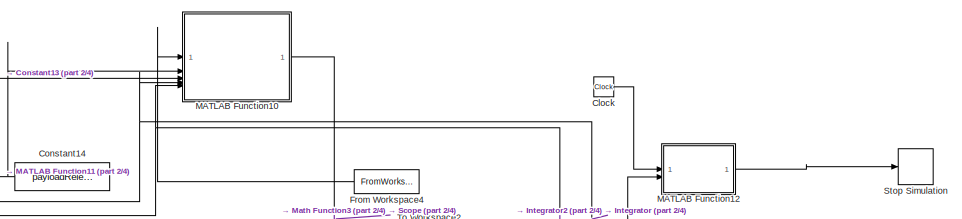
[diagram: root canvas - part 1/4, top center region]
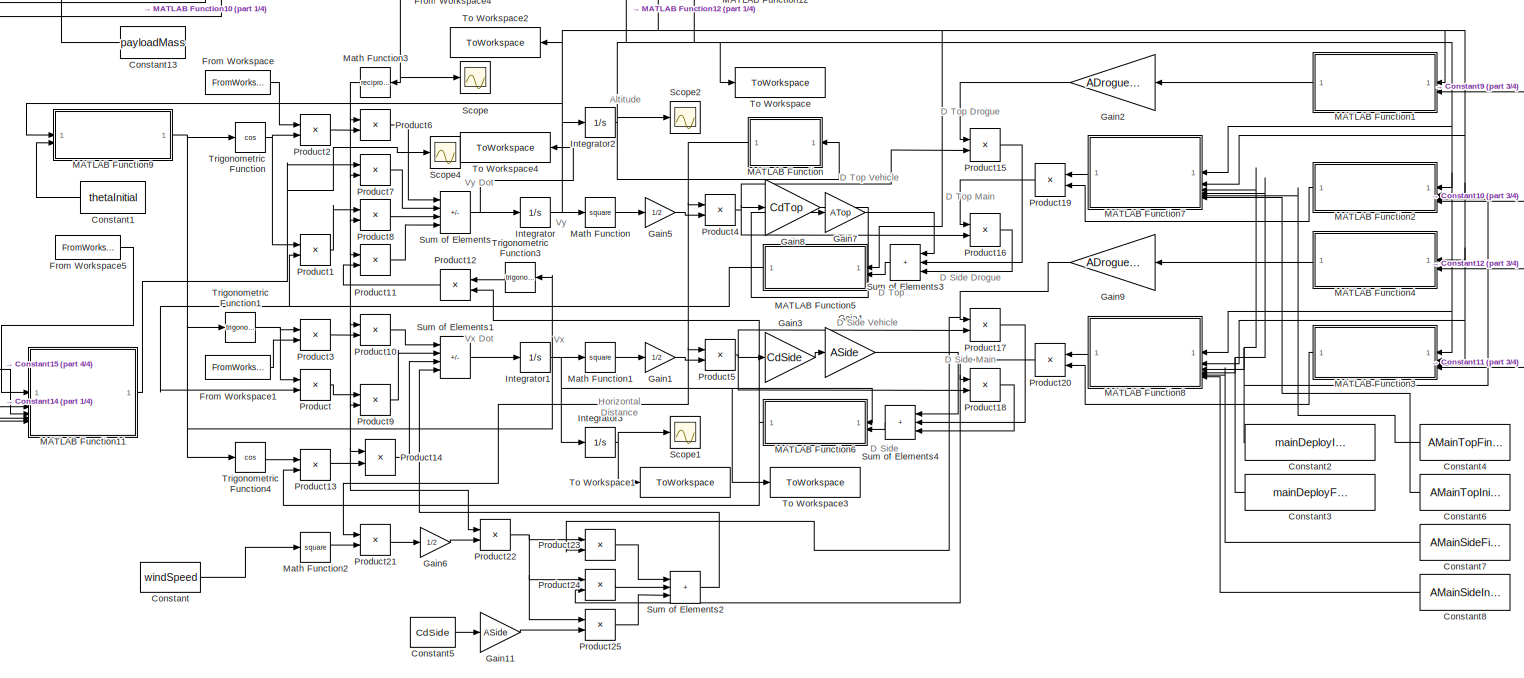
[diagram: root canvas - part 2/4, most of the canvas]
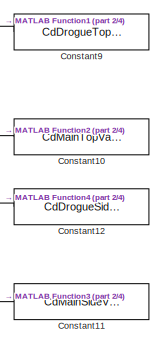
[diagram: root canvas - part 3/4, middle right region]
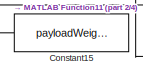
[diagram: root canvas - part 4/4, bottom left region]
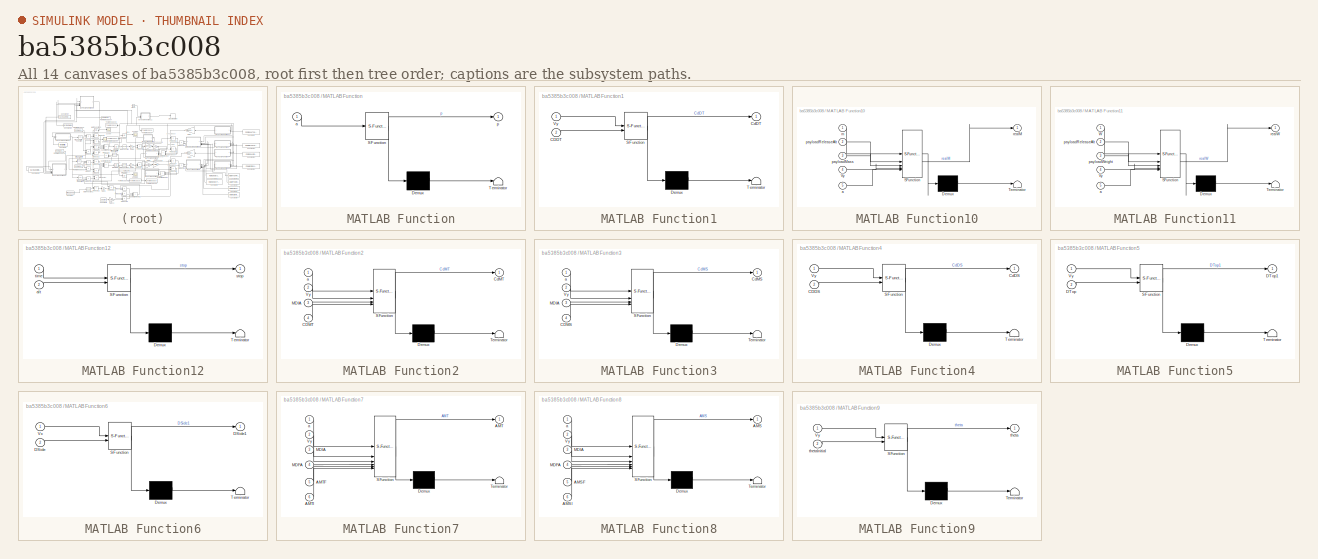
[diagram: thumbnail index - all 14 canvases of the model, root first then tree order]
MODEL slx_ba5385b3c008
KIND model
CONFIG AbsTol = auto
CONFIG EnableMultiTasking = off
CONFIG FixedStep = auto
CONFIG MaxStep = auto
CONFIG MinStep = auto
CONFIG RelTol = 1e-3
CONFIG SampleTimeConstraint = Unconstrained
CONFIG SolverName = ode15s
CONFIG StartTime = 0.0
CONFIG StopTime = 200
BLOCK [Clock] Clock
BLOCK [Constant] Constant
  Value = windSpeed
BLOCK [Constant] Constant1
  Value = thetaInitial
BLOCK [Constant] Constant10
  Value = CdMainTopValue
BLOCK [Constant] Constant11
  Value = CdMainSideValue
BLOCK [Constant] Constant12
  Value = CdDrogueSideValue
BLOCK [Constant] Constant13
  Value = payloadMass
BLOCK [Constant] Constant14
  Value = payloadReleaseAlt
BLOCK [Constant] Constant15
  Value = payloadWeight
BLOCK [Constant] Constant2
  Value = mainDeployInitialAltitude
BLOCK [Constant] Constant3
  Value = mainDeployFullyAltitude
BLOCK [Constant] Constant4
  Value = AMainTopFinal
BLOCK [Constant] Constant5
  Value = CdSide
BLOCK [Constant] Constant6
  Value = AMainTopInitial
BLOCK [Constant] Constant7
  Value = AMainSideFinal
BLOCK [Constant] Constant8
  Value = AMainSideInitial
BLOCK [Constant] Constant9
  Value = CdDrogueTopValue
BLOCK [FromWorkspace] From Workspace
  OutputAfterFinalValue = Holding final value
  VariableName = T
BLOCK [FromWorkspace] From Workspace1
  OutputAfterFinalValue = Holding final value
  VariableName = T
BLOCK [FromWorkspace] From Workspace4
  OutputAfterFinalValue = Holding final value
  VariableName = m
BLOCK [FromWorkspace] From Workspace5
  OutputAfterFinalValue = Holding final value
  VariableName = W
BLOCK [Gain] Gain1
  Gain = 1/2
BLOCK [Gain] Gain11
  Gain = ASide
BLOCK [Gain] Gain2
  Gain = ADrogueTop
BLOCK [Gain] Gain3
  Gain = CdSide
BLOCK [Gain] Gain4
  Gain = ASide
BLOCK [Gain] Gain5
  Gain = 1/2
BLOCK [Gain] Gain6
  Gain = 1/2
BLOCK [Gain] Gain7
  Gain = ATop
BLOCK [Gain] Gain8
  Gain = CdTop
BLOCK [Gain] Gain9
  Gain = ADrogueSide
BLOCK [Integrator] Integrator
BLOCK [Integrator] Integrator1
BLOCK [Integrator] Integrator2
BLOCK [Integrator] Integrator3
BLOCK [SubSystem] MATLAB Function
  ErrorFcn = Stateflow.Translate.translate
  PermitHierarchicalResolution = ExplicitOnly
  SFBlockType = MATLAB Function
  TreatAsAtomicUnit = on
BLOCK [Demux] MATLAB Function/ Demux 
  Outputs = 1
BLOCK [S-Function] MATLAB Function/ SFunction 
  EnableBusSupport = on
  FunctionName = sf_sfun
  PortCounts = [1 2]
  SFcnIsStateOwnerBlock = off
  SFunctionDeploymentMode = off
  Tag = Stateflow S-Function 2
BLOCK [Terminator] MATLAB Function/ Terminator 
BLOCK [Inport] MATLAB Function/a
BLOCK [Outport] MATLAB Function/p
BLOCK [SubSystem] MATLAB Function1
  ErrorFcn = Stateflow.Translate.translate
  PermitHierarchicalResolution = ExplicitOnly
  SFBlockType = MATLAB Function
  TreatAsAtomicUnit = on
BLOCK [Demux] MATLAB Function1/ Demux 
  Outputs = 1
BLOCK [S-Function] MATLAB Function1/ SFunction 
  EnableBusSupport = on
  FunctionName = sf_sfun
  PortCounts = [2 2]
  SFcnIsStateOwnerBlock = off
  SFunctionDeploymentMode = off
  Tag = Stateflow S-Function 1
BLOCK [Terminator] MATLAB Function1/ Terminator 
BLOCK [Inport] MATLAB Function1/CDDT
  Port = 2
BLOCK [Outport] MATLAB Function1/CdDT
BLOCK [Inport] MATLAB Function1/Vy
BLOCK [SubSystem] MATLAB Function10
  ErrorFcn = Stateflow.Translate.translate
  PermitHierarchicalResolution = ExplicitOnly
  SFBlockType = MATLAB Function
  TreatAsAtomicUnit = on
BLOCK [Demux] MATLAB Function10/ Demux 
  Outputs = 1
BLOCK [S-Function] MATLAB Function10/ SFunction 
  EnableBusSupport = on
  FunctionName = sf_sfun
  PortCounts = [5 2]
  SFcnIsStateOwnerBlock = off
  SFunctionDeploymentMode = off
  Tag = Stateflow S-Function 11
BLOCK [Terminator] MATLAB Function10/ Terminator 
BLOCK [Inport] MATLAB Function10/Vy
  Port = 4
BLOCK [Inport] MATLAB Function10/a
  Port = 5
BLOCK [Inport] MATLAB Function10/m
BLOCK [Inport] MATLAB Function10/payloadMass
  Port = 3
BLOCK [Inport] MATLAB Function10/payloadReleaseAlt
  Port = 2
BLOCK [Outport] MATLAB Function10/realM
BLOCK [SubSystem] MATLAB Function11
  ErrorFcn = Stateflow.Translate.translate
  PermitHierarchicalResolution = ExplicitOnly
  SFBlockType = MATLAB Function
  TreatAsAtomicUnit = on
BLOCK [Demux] MATLAB Function11/ Demux 
  Outputs = 1
BLOCK [S-Function] MATLAB Function11/ SFunction 
  EnableBusSupport = on
  FunctionName = sf_sfun
  PortCounts = [5 2]
  SFcnIsStateOwnerBlock = off
  SFunctionDeploymentMode = off
  Tag = Stateflow S-Function 12
BLOCK [Terminator] MATLAB Function11/ Terminator 
BLOCK [Inport] MATLAB Function11/Vy
  Port = 4
BLOCK [Inport] MATLAB Function11/W
BLOCK [Inport] MATLAB Function11/a
  Port = 5
BLOCK [Inport] MATLAB Function11/payloadReleaseAlt
  Port = 2
BLOCK [Inport] MATLAB Function11/payloadWeight
  Port = 3
BLOCK [Outport] MATLAB Function11/realW
BLOCK [SubSystem] MATLAB Function12
  ErrorFcn = Stateflow.Translate.translate
  PermitHierarchicalResolution = ExplicitOnly
  SFBlockType = MATLAB Function
  TreatAsAtomicUnit = on
BLOCK [Demux] MATLAB Function12/ Demux 
  Outputs = 1
BLOCK [S-Function] MATLAB Function12/ SFunction 
  EnableBusSupport = on
  FunctionName = sf_sfun
  PortCounts = [2 2]
  SFcnIsStateOwnerBlock = off
  SFunctionDeploymentMode = off
  Tag = Stateflow S-Function 13
BLOCK [Terminator] MATLAB Function12/ Terminator 
BLOCK [Inport] MATLAB Function12/alt
  Port = 2
BLOCK [Outport] MATLAB Function12/stop
BLOCK [Inport] MATLAB Function12/time
BLOCK [SubSystem] MATLAB Function2
  ErrorFcn = Stateflow.Translate.translate
  PermitHierarchicalResolution = ExplicitOnly
  SFBlockType = MATLAB Function
  TreatAsAtomicUnit = on
BLOCK [Demux] MATLAB Function2/ Demux 
  Outputs = 1
BLOCK [S-Function] MATLAB Function2/ SFunction 
  EnableBusSupport = on
  FunctionName = sf_sfun
  PortCounts = [4 2]
  SFcnIsStateOwnerBlock = off
  SFunctionDeploymentMode = off
  Tag = Stateflow S-Function 3
BLOCK [Terminator] MATLAB Function2/ Terminator 
BLOCK [Inport] MATLAB Function2/CDMT
  Port = 4
BLOCK [Outport] MATLAB Function2/CdMT
BLOCK [Inport] MATLAB Function2/MDIA
  Port = 3
BLOCK [Inport] MATLAB Function2/Vy
  Port = 2
BLOCK [Inport] MATLAB Function2/a
BLOCK [SubSystem] MATLAB Function3
  ErrorFcn = Stateflow.Translate.translate
  PermitHierarchicalResolution = ExplicitOnly
  SFBlockType = MATLAB Function
  TreatAsAtomicUnit = on
BLOCK [Demux] MATLAB Function3/ Demux 
  Outputs = 1
BLOCK [S-Function] MATLAB Function3/ SFunction 
  EnableBusSupport = on
  FunctionName = sf_sfun
  PortCounts = [4 2]
  SFcnIsStateOwnerBlock = off
  SFunctionDeploymentMode = off
  Tag = Stateflow S-Function 4
BLOCK [Terminator] MATLAB Function3/ Terminator 
BLOCK [Inport] MATLAB Function3/CDMS
  Port = 4
BLOCK [Outport] MATLAB Function3/CdMS
BLOCK [Inport] MATLAB Function3/MDIA
  Port = 3
BLOCK [Inport] MATLAB Function3/Vy
  Port = 2
BLOCK [Inport] MATLAB Function3/a
BLOCK [SubSystem] MATLAB Function4
  ErrorFcn = Stateflow.Translate.translate
  PermitHierarchicalResolution = ExplicitOnly
  SFBlockType = MATLAB Function
  TreatAsAtomicUnit = on
BLOCK [Demux] MATLAB Function4/ Demux 
  Outputs = 1
BLOCK [S-Function] MATLAB Function4/ SFunction 
  EnableBusSupport = on
  FunctionName = sf_sfun
  PortCounts = [2 2]
  SFcnIsStateOwnerBlock = off
  SFunctionDeploymentMode = off
  Tag = Stateflow S-Function 5
BLOCK [Terminator] MATLAB Function4/ Terminator 
BLOCK [Inport] MATLAB Function4/CDDS
  Port = 2
BLOCK [Outport] MATLAB Function4/CdDS
BLOCK [Inport] MATLAB Function4/Vy
BLOCK [SubSystem] MATLAB Function5
  ErrorFcn = Stateflow.Translate.translate
  PermitHierarchicalResolution = ExplicitOnly
  SFBlockType = MATLAB Function
  TreatAsAtomicUnit = on
BLOCK [Demux] MATLAB Function5/ Demux 
  Outputs = 1
BLOCK [S-Function] MATLAB Function5/ SFunction 
  EnableBusSupport = on
  FunctionName = sf_sfun
  PortCounts = [2 2]
  SFcnIsStateOwnerBlock = off
  SFunctionDeploymentMode = off
  Tag = Stateflow S-Function 6
BLOCK [Terminator] MATLAB Function5/ Terminator 
BLOCK [Inport] MATLAB Function5/DTop
  Port = 2
BLOCK [Outport] MATLAB Function5/DTop1
BLOCK [Inport] MATLAB Function5/Vy
BLOCK [SubSystem] MATLAB Function6
  ErrorFcn = Stateflow.Translate.translate
  PermitHierarchicalResolution = ExplicitOnly
  SFBlockType = MATLAB Function
  TreatAsAtomicUnit = on
BLOCK [Demux] MATLAB Function6/ Demux 
  Outputs = 1
BLOCK [S-Function] MATLAB Function6/ SFunction 
  EnableBusSupport = on
  FunctionName = sf_sfun
  PortCounts = [2 2]
  SFcnIsStateOwnerBlock = off
  SFunctionDeploymentMode = off
  Tag = Stateflow S-Function 7
BLOCK [Terminator] MATLAB Function6/ Terminator 
BLOCK [Inport] MATLAB Function6/DSide
  Port = 2
BLOCK [Outport] MATLAB Function6/DSide1
BLOCK [Inport] MATLAB Function6/Vx
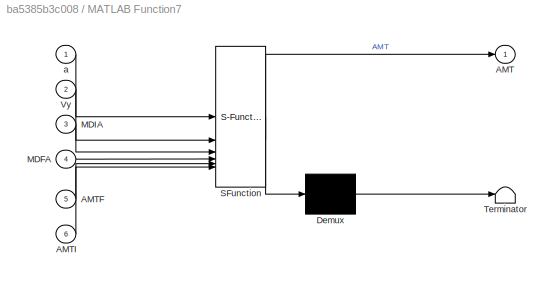
BLOCK [SubSystem] MATLAB Function7
  ErrorFcn = Stateflow.Translate.translate
  PermitHierarchicalResolution = ExplicitOnly
  SFBlockType = MATLAB Function
  TreatAsAtomicUnit = on
BLOCK [Demux] MATLAB Function7/ Demux 
  Outputs = 1
BLOCK [S-Function] MATLAB Function7/ SFunction 
  EnableBusSupport = on
  FunctionName = sf_sfun
  PortCounts = [6 2]
  SFcnIsStateOwnerBlock = off
  SFunctionDeploymentMode = off
  Tag = Stateflow S-Function 8
BLOCK [Terminator] MATLAB Function7/ Terminator 
BLOCK [Outport] MATLAB Function7/AMT
BLOCK [Inport] MATLAB Function7/AMTF
  Port = 5
BLOCK [Inport] MATLAB Function7/AMTI
  Port = 6
BLOCK [Inport] MATLAB Function7/MDFA
  Port = 4
BLOCK [Inport] MATLAB Function7/MDIA
  Port = 3
BLOCK [Inport] MATLAB Function7/Vy
  Port = 2
BLOCK [Inport] MATLAB Function7/a
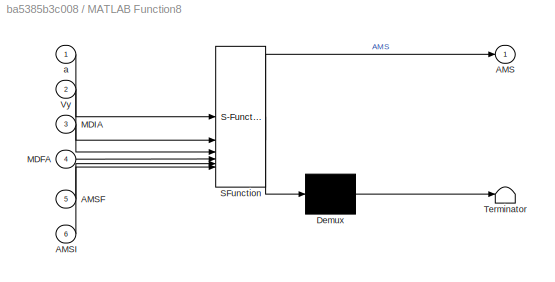
BLOCK [SubSystem] MATLAB Function8
  ErrorFcn = Stateflow.Translate.translate
  PermitHierarchicalResolution = ExplicitOnly
  SFBlockType = MATLAB Function
  TreatAsAtomicUnit = on
BLOCK [Demux] MATLAB Function8/ Demux 
  Outputs = 1
BLOCK [S-Function] MATLAB Function8/ SFunction 
  EnableBusSupport = on
  FunctionName = sf_sfun
  PortCounts = [6 2]
  SFcnIsStateOwnerBlock = off
  SFunctionDeploymentMode = off
  Tag = Stateflow S-Function 9
BLOCK [Terminator] MATLAB Function8/ Terminator 
BLOCK [Outport] MATLAB Function8/AMS
BLOCK [Inport] MATLAB Function8/AMSF
  Port = 5
BLOCK [Inport] MATLAB Function8/AMSI
  Port = 6
BLOCK [Inport] MATLAB Function8/MDFA
  Port = 4
BLOCK [Inport] MATLAB Function8/MDIA
  Port = 3
BLOCK [Inport] MATLAB Function8/Vy
  Port = 2
BLOCK [Inport] MATLAB Function8/a
BLOCK [SubSystem] MATLAB Function9
  ErrorFcn = Stateflow.Translate.translate
  PermitHierarchicalResolution = ExplicitOnly
  SFBlockType = MATLAB Function
  TreatAsAtomicUnit = on
BLOCK [Demux] MATLAB Function9/ Demux 
  Outputs = 1
BLOCK [S-Function] MATLAB Function9/ SFunction 
  EnableBusSupport = on
  FunctionName = sf_sfun
  PortCounts = [2 2]
  SFcnIsStateOwnerBlock = off
  SFunctionDeploymentMode = off
  Tag = Stateflow S-Function 10
BLOCK [Terminator] MATLAB Function9/ Terminator 
BLOCK [Inport] MATLAB Function9/Vy
BLOCK [Outport] MATLAB Function9/theta
BLOCK [Inport] MATLAB Function9/thetaInitial
  Port = 2
BLOCK [Math] Math Function
  Operator = square
BLOCK [Math] Math Function1
  Operator = square
BLOCK [Math] Math Function2
  Operator = square
BLOCK [Math] Math Function3
  Operator = reciprocal
BLOCK [Product] Product
BLOCK [Product] Product1
BLOCK [Product] Product10
BLOCK [Product] Product11
BLOCK [Product] Product12
BLOCK [Product] Product13
BLOCK [Product] Product14
BLOCK [Product] Product15
BLOCK [Product] Product16
BLOCK [Product] Product17
BLOCK [Product] Product18
BLOCK [Product] Product19
BLOCK [Product] Product2
BLOCK [Product] Product20
BLOCK [Product] Product21
BLOCK [Product] Product22
BLOCK [Product] Product23
BLOCK [Product] Product24
BLOCK [Product] Product25
BLOCK [Product] Product3
BLOCK [Product] Product4
BLOCK [Product] Product5
BLOCK [Product] Product6
BLOCK [Product] Product7
BLOCK [Product] Product8
BLOCK [Product] Product9
BLOCK [Scope] Scope
  Floating = off
  NumInputPorts = 1
  ScopeSpecificationString = Simulink.scopes.TimeScopeBlockCfg('CurrentConfiguration', extmgr.ConfigurationSet(extmgr.Configuration('Core','General UI',true),extmgr.Configuration('Core','Source UI',true),extmgr.Configuration('Sources','WiredSimulink',true,'DataLoggingVariableName','ScopeData1'),extmgr.Configuration('Visuals','Time Domain',true,'SerializedDisplays',{struct('MinYLimReal','3.15207','MaxYLimReal','3.65582','YLabe...<+1403ch>
BLOCK [Scope] Scope1
  Floating = off
  NumInputPorts = 1
  ScopeSpecificationString = Simulink.scopes.TimeScopeBlockCfg('CurrentConfiguration', extmgr.ConfigurationSet(extmgr.Configuration('Core','General UI',true),extmgr.Configuration('Core','Source UI',true),extmgr.Configuration('Sources','WiredSimulink',true,'DataLoggingVariableName','ScopeData1'),extmgr.Configuration('Visuals','Time Domain',true,'SerializedDisplays',{struct('MinYLimReal','-57.14559','MaxYLimReal','514.31035','Y...<+1453ch>
BLOCK [Scope] Scope2
  Floating = off
  NumInputPorts = 1
  ScopeSpecificationString = Simulink.scopes.TimeScopeBlockCfg('CurrentConfiguration', extmgr.ConfigurationSet(extmgr.Configuration('Core','General UI',true),extmgr.Configuration('Core','Source UI',true),extmgr.Configuration('Sources','WiredSimulink',true,'DataLoggingVariableName','ScopeData1'),extmgr.Configuration('Visuals','Time Domain',true,'SerializedDisplays',{struct('MinYLimReal','-197.28513','MaxYLimReal','1774.35262',...<+1521ch>
BLOCK [Scope] Scope4
  Floating = off
  NumInputPorts = 1
  ScopeSpecificationString = Simulink.scopes.TimeScopeBlockCfg('CurrentConfiguration', extmgr.ConfigurationSet(extmgr.Configuration('Core','General UI',true),extmgr.Configuration('Core','Source UI',true),extmgr.Configuration('Sources','WiredSimulink',true,'DataLoggingVariableName','ScopeData2'),extmgr.Configuration('Visuals','Time Domain',true,'SerializedDisplays',{struct('MinYLimReal','30.92178','MaxYLimReal','35.86357','YLa...<+1411ch>
BLOCK [Stop] Stop Simulation
BLOCK [Sum] Sum of Elements
  IconShape = rectangular
  Inputs = +---
BLOCK [Sum] Sum of Elements1
  IconShape = rectangular
  Inputs = +---
BLOCK [Sum] Sum of Elements2
  IconShape = rectangular
  Inputs = +++
BLOCK [Sum] Sum of Elements3
  IconShape = rectangular
  Inputs = +++
BLOCK [Sum] Sum of Elements4
  IconShape = rectangular
  Inputs = +++
BLOCK [ToWorkspace] To Workspace
  FixptAsFi = on
  MaxDataPoints = inf
  SampleTime = -1
  VariableName = altitude
BLOCK [ToWorkspace] To Workspace1
  FixptAsFi = on
  MaxDataPoints = inf
  SampleTime = -1
  VariableName = drift
BLOCK [ToWorkspace] To Workspace2
  FixptAsFi = on
  MaxDataPoints = inf
  SampleTime = -1
  VariableName = Vy
BLOCK [ToWorkspace] To Workspace3
  FixptAsFi = on
  MaxDataPoints = inf
  SampleTime = -1
  VariableName = Vx
BLOCK [ToWorkspace] To Workspace4
  FixptAsFi = on
  MaxDataPoints = inf
  SampleTime = -1
  VariableName = Ay
BLOCK [Trigonometry] Trigonometric Function
  Operator = cos
BLOCK [Trigonometry] Trigonometric Function1
BLOCK [Trigonometry] Trigonometric Function3
BLOCK [Trigonometry] Trigonometric Function4
  Operator = cos
ANNOTATION (root): D Side
ANNOTATION (root): D Top
ANNOTATION (root): Horizontal Distance
ANNOTATION (root): Altitude
ANNOTATION (root): D Side Drogue
ANNOTATION (root): D Side Main
ANNOTATION (root): D Side Vehicle
ANNOTATION (root): D Top Drogue
ANNOTATION (root): D Top Main
ANNOTATION (root): D Top Vehicle
ANNOTATION (root): Vx
ANNOTATION (root): Vx Dot
ANNOTATION (root): Vy
ANNOTATION (root): Vy Dot
LINE Clock:1 -> MATLAB Function12:1
LINE Constant10:1 -> MATLAB Function2:4
LINE Constant11:1 -> MATLAB Function3:4
LINE Constant12:1 -> MATLAB Function4:2
LINE Constant13:1 -> MATLAB Function10:3
NET Constant14:1 -> MATLAB Function10:2, MATLAB Function11:2
LINE Constant15:1 -> MATLAB Function11:3
LINE Constant1:1 -> MATLAB Function9:2
NET Constant2:1 -> MATLAB Function2:3, MATLAB Function3:3, MATLAB Function7:3, MATLAB Function8:3
NET Constant3:1 -> MATLAB Function7:4, MATLAB Function8:4
LINE Constant4:1 -> MATLAB Function7:5
LINE Constant5:1 -> Gain11:1
LINE Constant6:1 -> MATLAB Function7:6
LINE Constant7:1 -> MATLAB Function8:5
LINE Constant8:1 -> MATLAB Function8:6
LINE Constant9:1 -> MATLAB Function1:2
LINE Constant:1 -> Math Function2:1
LINE From Workspace1:1 -> Product3:2
LINE From Workspace4:1 -> MATLAB Function10:1
LINE From Workspace5:1 -> MATLAB Function11:1
LINE From Workspace:1 -> Product2:1
LINE Gain11:1 -> Product25:2
LINE Gain1:1 -> Product5:2
LINE Gain2:1 -> Product15:1
LINE Gain3:1 -> Gain4:1
LINE Gain4:1 -> Sum of Elements4:1
LINE Gain5:1 -> Product4:2
LINE Gain6:1 -> Product22:2
LINE Gain7:1 -> Sum of Elements3:1
LINE Gain8:1 -> Gain7:1
NET Gain9:1 -> Product17:1, Product23:2
NET Integrator1:1 -> Integrator3:1, MATLAB Function6:1, Math Function1:1, To Workspace3:1
NET Integrator2:1 -> MATLAB Function10:5, MATLAB Function11:5, MATLAB Function12:2, MATLAB Function2:1, MATLAB Function3:1, MATLAB Function7:1, MATLAB Function8:1, MATLAB Function:1, Scope2:1, To Workspace:1
NET Integrator3:1 -> Scope1:1, To Workspace1:1
NET Integrator:1 -> Integrator2:1, MATLAB Function10:4, MATLAB Function11:4, MATLAB Function1:1, MATLAB Function2:2, MATLAB Function3:2, MATLAB Function4:1, MATLAB Function5:1, MATLAB Function7:2, MATLAB Function8:2, MATLAB Function9:1, Math Function:1, To Workspace2:1
NET MATLAB Function10:1 -> Math Function3:1, Scope:1
NET MATLAB Function11:1 -> Product7:1, Scope4:1
LINE MATLAB Function12:1 -> Stop Simulation:1
LINE MATLAB Function1:1 -> Gain2:1
LINE MATLAB Function2:1 -> Product19:2
LINE MATLAB Function3:1 -> Product20:2
LINE MATLAB Function4:1 -> Gain9:1
NET MATLAB Function5:1 -> Product1:2, Product:2
NET MATLAB Function6:1 -> Product12:2, Product13:2
LINE MATLAB Function7:1 -> Product19:1
LINE MATLAB Function8:1 -> Product20:1
NET MATLAB Function9:1 -> Trigonometric Function1:1, Trigonometric Function3:1, Trigonometric Function4:1, Trigonometric Function:1
NET MATLAB Function:1 -> Product21:1, Product4:1, Product5:1
LINE Math Function1:1 -> Gain1:1
LINE Math Function2:1 -> Product21:2
NET Math Function3:1 -> Product10:1, Product11:1, Product14:1, Product22:1, Product6:1, Product7:2, Product8:2, Product9:2
LINE Math Function:1 -> Gain5:1
LINE Product10:1 -> Sum of Elements1:1
LINE Product11:1 -> Sum of Elements:4
LINE Product12:1 -> Product11:2
LINE Product13:1 -> Product14:2
LINE Product14:1 -> Sum of Elements1:3
LINE Product15:1 -> Sum of Elements3:2
LINE Product16:1 -> Sum of Elements3:3
LINE Product17:1 -> Sum of Elements4:2
LINE Product18:1 -> Sum of Elements4:3
LINE Product19:1 -> Product16:1
LINE Product1:1 -> Product8:1
NET Product20:1 -> Product18:1, Product24:2
LINE Product21:1 -> Gain6:1
NET Product22:1 -> Product23:1, Product24:1, Product25:1
LINE Product23:1 -> Sum of Elements2:1
LINE Product24:1 -> Sum of Elements2:2
LINE Product25:1 -> Sum of Elements2:3
LINE Product2:1 -> Product6:2
LINE Product3:1 -> Product10:2
NET Product4:1 -> Gain8:1, Product15:2, Product16:2
NET Product5:1 -> Gain3:1, Product17:2, Product18:2
LINE Product6:1 -> Sum of Elements:1
LINE Product7:1 -> Sum of Elements:2
LINE Product8:1 -> Sum of Elements:3
LINE Product9:1 -> Sum of Elements1:2
LINE Product:1 -> Product9:1
LINE Sum of Elements1:1 -> Integrator1:1
LINE Sum of Elements2:1 -> Sum of Elements1:4
LINE Sum of Elements3:1 -> MATLAB Function5:2
LINE Sum of Elements4:1 -> MATLAB Function6:2
NET Sum of Elements:1 -> Integrator:1, To Workspace4:1
NET Trigonometric Function1:1 -> Product3:1, Product:1
LINE Trigonometric Function3:1 -> Product12:1
LINE Trigonometric Function4:1 -> Product13:1
NET Trigonometric Function:1 -> Product1:1, Product2:2
note: NET lines group one-source signal fan-out (src -> all destinations, sorted); 1:1 wires keep LINE
CHART MATLAB Function10 states=1 transitions=1
  STATE_LABEL 'eML_blk_kernel()'
  STATE_LABEL 'SCRIPT:\nfunction realM =  Payload( m, payloadReleaseAlt, payloadMass, Vy, a)\n\nif a <= payloadReleaseAlt && Vy < 0   % \n    realM = m - payloadMass;\nelse\n    realM = m;\nend\n    \n\n'
CHART MATLAB Function11 states=1 transitions=1
  STATE_LABEL 'eML_blk_kernel()'
  STATE_LABEL 'SCRIPT:\nfunction realW =  Payload( W, payloadReleaseAlt, payloadWeight, Vy, a)\n\nif a <= payloadReleaseAlt && Vy < 0\n    realW = W - payloadWeight;\n    \nelse\n    realW = W;\nend\n    \n\n'
CHART MATLAB Function12 states=1 transitions=1
  STATE_LABEL 'eML_blk_kernel()'
  STATE_LABEL 'SCRIPT:\nfunction stop = shouldstop(time, alt)\n    if time > 10 && alt < 3\n        stop = 1;\n    else\n        stop = 0;\n    end\n'
CHART MATLAB Function1 states=1 transitions=1
  STATE_LABEL 'eML_blk_kernel()'
  STATE_LABEL 'SCRIPT:\nfunction CdDT = CdDrogueTop(Vy, CDDT)\n    if Vy < 0 % m/s\n        CdDT = CDDT; % unitless\n    else\n        CdDT = 0; % unitless\n    end'
CHART MATLAB Function states=1 transitions=1
  STATE_LABEL 'eML_blk_kernel()'
  STATE_LABEL 'SCRIPT:\nfunction p = density(a)\n    alt = zeros(1, 2001); % m\n    temp = zeros(1, 2001); % K\n    den = zeros(1, 2001); % kg/m^3\n    for i = 0:2000\n        alt(i + 1) = round((6371000 / (6371000 + i)) * i);\n        temp(i + 1) = ((216.66 - 288.16) / (11000 - 0)) * i + (((288.16 * 11000) - (216.66 * 0)) / (11000 - 0));\n        den(i + 1) = (1.2250) * ((temp(alt(i + 1) + 1) / 288.16) .^ -(9.81 / (((t...<+123ch>'
CHART MATLAB Function2 states=1 transitions=1
  STATE_LABEL 'eML_blk_kernel()'
  STATE_LABEL 'SCRIPT:\nfunction CdMT = CdMainTop(a, Vy, MDIA, CDMT)\n    if a <= MDIA && Vy < 0 % m/s\n        CdMT = CDMT; % unitless\n    else\n        CdMT = 0; % unitless\n    end'
CHART MATLAB Function3 states=1 transitions=1
  STATE_LABEL 'eML_blk_kernel()'
  STATE_LABEL 'SCRIPT:\nfunction CdMS = CdMainSide(a, Vy, MDIA, CDMS)\n    if a <= MDIA && Vy < 0 % m/s\n        CdMS = CDMS; % unitless\n    else\n        CdMS = 0; % unitless\n    end'
CHART MATLAB Function4 states=1 transitions=1
  STATE_LABEL 'eML_blk_kernel()'
  STATE_LABEL 'SCRIPT:\nfunction CdDS = CdDrogueSide(Vy, CDDS)\n    if Vy < 0 % m/s\n        CdDS = CDDS; % unitless\n    else\n        CdDS = 0; % unitless\n    end'
CHART MATLAB Function5 states=1 transitions=1
  STATE_LABEL 'eML_blk_kernel()'
  STATE_LABEL 'SCRIPT:\nfunction DTop1 = dragTop(Vy, DTop)\n    if Vy >= 0 % m/s\n        DTop1 = DTop; % N\n    else\n        DTop1 = -DTop; % N\n    end'
CHART MATLAB Function6 states=1 transitions=1
  STATE_LABEL 'eML_blk_kernel()'
  STATE_LABEL 'SCRIPT:\nfunction DSide1 = dragSide(Vx, DSide)\n    if Vx >= 0 % m/s\n        DSide1 = DSide; % N\n    else\n        DSide1 = -DSide; % N\n    end'
CHART MATLAB Function7 states=1 transitions=1
  STATE_LABEL 'eML_blk_kernel()'
  STATE_LABEL 'SCRIPT:\nfunction AMT = AMainTop(a, Vy, MDIA, MDFA, AMTF, AMTI)\n    k = (1 / (MDFA - MDIA)) * log(AMTF / AMTI);\n    C = AMTI * exp(-k * MDIA);\n    if a <= MDIA && a >= MDFA && Vy < 0 % m/s\n        AMT = C * exp(k * a); % m^2\n    elseif a < MDFA && Vy < 0 % m/s\n        AMT = AMTF; % m^2\n    else\n        AMT = AMTI; % m^2\n    end'
CHART MATLAB Function8 states=1 transitions=1
  STATE_LABEL 'eML_blk_kernel()'
  STATE_LABEL 'SCRIPT:\nfunction AMS = AMainSide(a, Vy, MDIA, MDFA, AMSF, AMSI)\n    k = (1 / (MDFA - MDIA)) * log(AMSF / AMSI);\n    C = AMSI * exp(-k * MDIA);\n    if a <= MDIA && a >= MDFA && Vy < 0 % m/s\n        AMS = C * exp(k * a); % m^2\n    elseif a < MDFA && Vy < 0 % m/s\n        AMS = AMSF; % m^2\n    else\n        AMS = AMSI; % m^2\n    end'
CHART MATLAB Function9 states=1 transitions=1
  STATE_LABEL 'eML_blk_kernel()'
  STATE_LABEL 'SCRIPT:\nfunction theta = theta(Vy, thetaInitial)\n    if Vy >= 0 % m/s\n        theta = thetaInitial;\n    else\n        theta = 0;\n    end'
CHART  states=0 transitions=0
CHART  states=0 transitions=0
CHART  states=0 transitions=0
CHART  states=0 transitions=0
CHART  states=0 transitions=0
CHART  states=0 transitions=0
CHART  states=0 transitions=0
CHART  states=0 transitions=0
CHART  states=0 transitions=0
CHART  states=0 transitions=0
CHART  states=0 transitions=0
CHART  states=0 transitions=0
CHART  states=0 transitions=0
